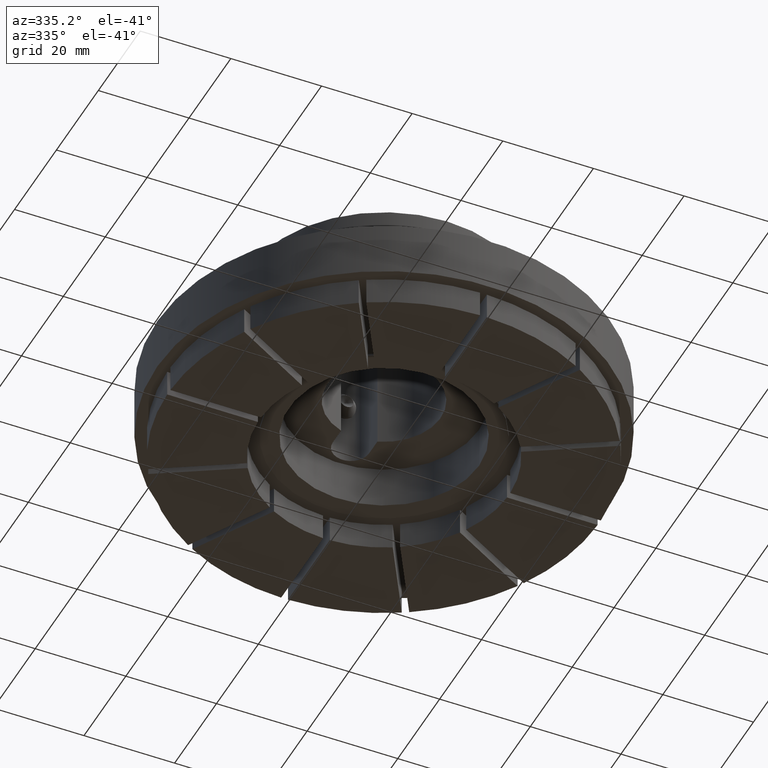
[diagram: clean part render]
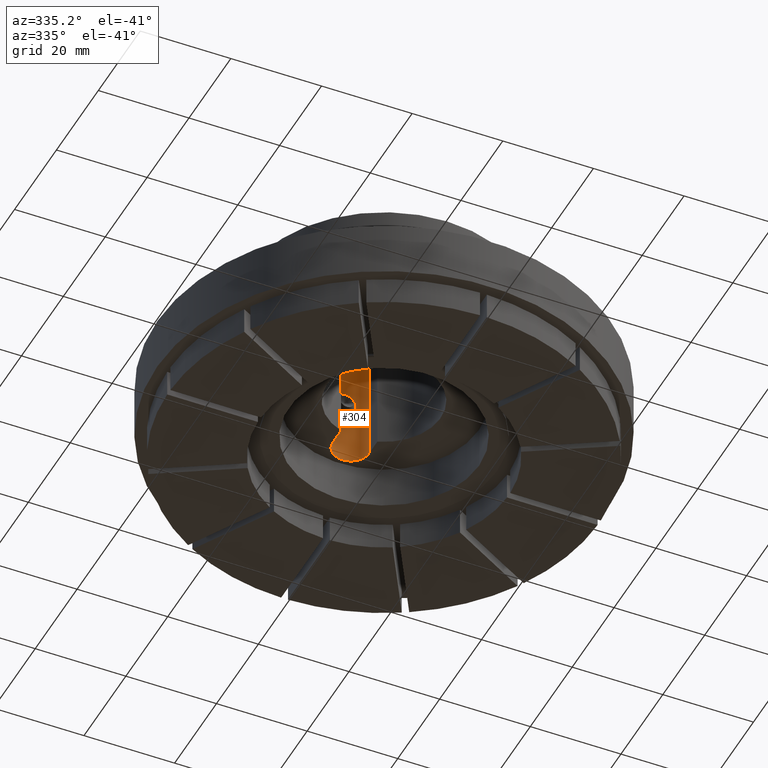
[diagram: same view with one face highlighted and labeled with its STEP entity id]
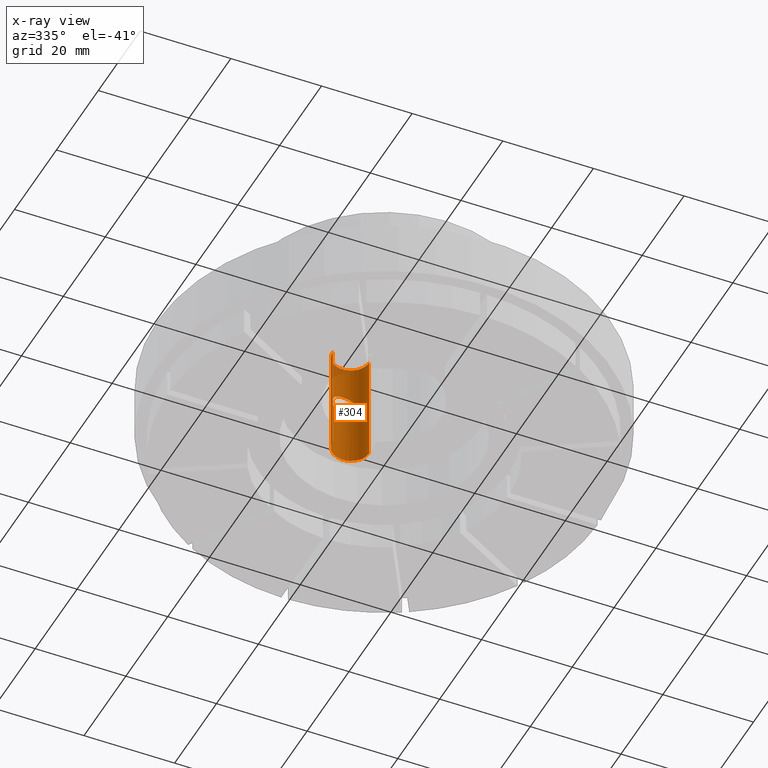
[diagram: x-ray of the same camera — body ghosted, the highlighted face saturated]
A machine part, auxiliary view. The second image highlights one B-rep face of the part: STEP entity #304.
The next image is the same camera in x-ray: the body ghosted, the highlighted face saturated — about 6% of this face is hidden behind the body in this view.
In plain terms, the highlighted cylindrical surface (edge-blend (fillet) strip) has radius 4 mm, axis along (0, -0, 1).
Its self-contained STEP definition (entity closure, byte-faithful):
#304 = ADVANCED_FACE( '', ( #442, #443 ), #444, .F. );
#442 = FACE_BOUND( '', #654, .T. );
#443 = FACE_OUTER_BOUND( '', #655, .T. );
#444 = CYLINDRICAL_SURFACE( '', #656, 4.00000000000000 );
#654 = EDGE_LOOP( '', ( #895 ) );
#655 = EDGE_LOOP( '', ( #896, #897, #898, #899 ) );
#656 = AXIS2_PLACEMENT_3D( '', #900, #901, #902 );
#895 = ORIENTED_EDGE( '', *, *, #1527, .F. );
#896 = ORIENTED_EDGE( '', *, *, #1519, .F. );
#897 = ORIENTED_EDGE( '', *, *, #1523, .F. );
#898 = ORIENTED_EDGE( '', *, *, #1529, .T. );
#899 = ORIENTED_EDGE( '', *, *, #1530, .T. );
#900 = CARTESIAN_POINT( '', ( 8.67361737988404E-016, 15.8000000000000, 39.0000100000000 ) );
#901 = DIRECTION( '', ( 0.000000000000000, -0.000000000000000, 1.00000000000000 ) );
#902 = DIRECTION( '', ( -1.00000000000000, 0.000000000000000, 0.000000000000000 ) );
#1519 = EDGE_CURVE( '', #1733, #1735, #1736, .T. );
#1523 = EDGE_CURVE( '', #1740, #1733, #1742, .T. );
#1527 = EDGE_CURVE( '', #1749, #1749, #1750, .T. );
#1529 = EDGE_CURVE( '', #1740, #1753, #1754, .F. );
#1530 = EDGE_CURVE( '', #1753, #1735, #1755, .T. );
#1733 = VERTEX_POINT( '', #2090 );
#1735 = VERTEX_POINT( '', #2093 );
#1736 = CIRCLE( '', #2094, 4.00000000000000 );
#1740 = VERTEX_POINT( '', #2099 );
#1742 = LINE( '', #2102, #2103 );
#1749 = VERTEX_POINT( '', #2171 );
#1750 = B_SPLINE_CURVE_WITH_KNOTS( '', 3, ( #2172, #2173, #2174, #2175, #2176, #2177, #2178, #2179, #2180, #2181, #2182, #2183, #2184, #2185, #2186, #2187, #2188, #2189, #2190, #2191, #2192, #2193, #2194, #2195, #2196, #2197, #2198, #2199, #2200, #2201, #2202, #2203, #2204, #2205, #2206, #2207, #2208, #2209, #2210, #2211, #2212, #2213, #2214, #2215, #2216, #2217, #2218, #2219, #2220, #2221, #2222, #2223, #2224, #2225, #2226, #2227, #2228, #2229, #2230, #2231, #2232, #2233 ), .UNSPECIFIED., .T., .F., ( 2, 2, 2, 2, 2, 2, 2, 2, 2, 2, 2, 2, 2, 2, 2, 2, 2, 2, 2, 2, 2, 2, 2, 2, 2, 2, 2, 2, 2, 2, 2, 2, 2 ), ( -0.000501660172990847, 0.000000000000000, 0.000501660172990851, 0.00100332034598170, 0.00200664069196341, 0.00250830086495426, 0.00300996103794511, 0.00351162121093596, 0.00401328138392682, 0.00451494155691767, 0.00501660172990852, 0.00601992207589023, 0.00652158224888108, 0.00702324242187193, 0.00752490259486278, 0.00802656276785363, 0.00852822294084448, 0.00902988311383533, 0.00953154328682618, 0.0100332034598170, 0.0105348636328079, 0.0110365238057987, 0.0115381839787896, 0.0120398441517804, 0.0125415043247713, 0.0130431644977621, 0.0135448246707530, 0.0140464848437438, 0.0145481450167347, 0.0150498051897255, 0.0155514653627164, 0.0160531255357072, 0.0165547857086981 ), .UNSPECIFIED. );
#1753 = VERTEX_POINT( '', #2236 );
#1754 = CIRCLE( '', #2237, 4.00000000000000 );
#1755 = LINE( '', #2238, #2239 );
#2090 = CARTESIAN_POINT( '', ( 4.00000000000000, 15.8000000000000, 15.0000000000000 ) );
#2093 = CARTESIAN_POINT( '', ( -4.00000000000000, 15.8000000000000, 15.0000000000000 ) );
#2094 = AXIS2_PLACEMENT_3D( '', #2714, #2715, #2716 );
#2099 = CARTESIAN_POINT( '', ( 4.00000000000000, 15.8000000000000, 39.0000000000000 ) );
#2102 = CARTESIAN_POINT( '', ( 4.00000000000000, 15.8000000000000, 39.0000100000000 ) );
#2103 = VECTOR( '', #2722, 1000.00000000000 );
#2171 = CARTESIAN_POINT( '', ( -2.50000000000000, 18.9224989991992, 29.0000000000000 ) );
#2172 = CARTESIAN_POINT( '', ( -2.50000000000000, 18.9224989991992, 29.1701694173536 ) );
#2173 = CARTESIAN_POINT( '', ( -2.50000000000000, 18.9224989991992, 28.8298305826464 ) );
#2174 = CARTESIAN_POINT( '', ( -2.48282516037210, 18.9364508718382, 28.6638341510880 ) );
#2175 = CARTESIAN_POINT( '', ( -2.41678389798396, 18.9876167333725, 28.3392550829579 ) );
#2176 = CARTESIAN_POINT( '', ( -2.36709841032978, 19.0253315491089, 28.1795601009365 ) );
#2177 = CARTESIAN_POINT( '', ( -2.17844371761518, 19.1582818393687, 27.7313436171180 ) );
#2178 = CARTESIAN_POINT( '', ( -1.99715549778608, 19.2746910775718, 27.4631704923897 ) );
#2179 = CARTESIAN_POINT( '', ( -1.66209783379365, 19.4404612115255, 27.1258203006787 ) );
#2180 = CARTESIAN_POINT( '', ( -1.53770725189031, 19.4953356560857, 27.0223378777838 ) );
#2181 = CARTESIAN_POINT( '', ( -1.27256485436580, 19.5948159237422, 26.8421608601201 ) );
#2182 = CARTESIAN_POINT( '', ( -1.13170555272787, 19.6396857970803, 26.7648608292580 ) );
#2183 = CARTESIAN_POINT( '', ( -0.831690714548345, 19.7156397987697, 26.6367617288995 ) );
#2184 = CARTESIAN_POINT( '', ( -0.670586854849118, 19.7467943849550, 26.5858974452971 ) );
#2185 = CARTESIAN_POINT( '', ( -0.345383884072125, 19.7884310975159, 26.5184102177953 ) );
#2186 = CARTESIAN_POINT( '', ( -0.179700853490371, 19.7995320431697, 26.5007487350718 ) );
#2187 = CARTESIAN_POINT( '', ( 0.158226685381364, 19.8004391355349, 26.4992973791305 ) );
#2188 = CARTESIAN_POINT( '', ( 0.327355301905881, 19.7899779938282, 26.5159336300899 ) );
#2189 = CARTESIAN_POINT( '', ( 0.654025052819522, 19.7495996145437, 26.5813229950883 ) );
#2190 = CARTESIAN_POINT( '', ( 0.815147761711096, 19.7191693891360, 26.6309290552217 ) );
#2191 = CARTESIAN_POINT( '', ( 1.26945165381213, 19.6060361001027, 26.8213893055675 ) );
#2192 = CARTESIAN_POINT( '', ( 1.54054799563275, 19.4999187600382, 27.0056631300653 ) );
#2193 = CARTESIAN_POINT( '', ( 1.87755974817301, 19.3341818192438, 27.3417068077545 ) );
#2194 = CARTESIAN_POINT( '', ( 1.98012724625705, 19.2770716035955, 27.4655511755294 ) );
#2195 = CARTESIAN_POINT( '', ( 2.15906456847887, 19.1688827579836, 27.7296152962870 ) );
#2196 = CARTESIAN_POINT( '', ( 2.23555952017633, 19.1178741984504, 27.8693460307771 ) );
#2197 = CARTESIAN_POINT( '', ( 2.36249805880404, 19.0287177775614, 28.1665087351882 ) );
#2198 = CARTESIAN_POINT( '', ( 2.41319294924666, 18.9903519603629, 28.3261136958894 ) );
#2199 = CARTESIAN_POINT( '', ( 2.48116226405784, 18.9377826025237, 28.6514934999501 ) );
#2200 = CARTESIAN_POINT( '', ( 2.49924268817942, 18.9231053247659, 28.8193938266906 ) );
#2201 = CARTESIAN_POINT( '', ( 2.50071060290050, 18.9219300704116, 29.1589939772344 ) );
#2202 = CARTESIAN_POINT( '', ( 2.48431939677944, 18.9352616366601, 29.3255880501739 ) );
#2203 = CARTESIAN_POINT( '', ( 2.41900136655918, 18.9859285591664, 29.6529033865859 ) );
#2204 = CARTESIAN_POINT( '', ( 2.36985206822518, 19.0233019128723, 29.8125510322980 ) );
#2205 = CARTESIAN_POINT( '', ( 2.24463727536214, 19.1117182170064, 30.1126731359274 ) );
#2206 = CARTESIAN_POINT( '', ( 2.16733879617559, 19.1635460238753, 30.2562548090081 ) );
#2207 = CARTESIAN_POINT( '', ( 1.98976351852672, 19.2715472706670, 30.5219641069697 ) );
#2208 = CARTESIAN_POINT( '', ( 1.88948757196336, 19.3278280804668, 30.6447992127661 ) );
#2209 = CARTESIAN_POINT( '', ( 1.66473364187875, 19.4392851154493, 30.8719480859568 ) );
#2210 = CARTESIAN_POINT( '', ( 1.54107438555998, 19.4939143033462, 30.9750067689909 ) );
#2211 = CARTESIAN_POINT( '', ( 1.27693578160235, 19.5933294283464, 31.1552255123426 ) );
#2212 = CARTESIAN_POINT( '', ( 1.13557242942148, 19.6386345256856, 31.2333525752097 ) );
#2213 = CARTESIAN_POINT( '', ( 0.831267173743378, 19.7158185159816, 31.3635531205190 ) );
#2214 = CARTESIAN_POINT( '', ( 0.673115791009341, 19.7463514089996, 31.4133794390348 ) );
#2215 = CARTESIAN_POINT( '', ( 0.348538226877533, 19.7881443574455, 31.4811300427964 ) );
#2216 = CARTESIAN_POINT( '', ( 0.179270261475024, 19.7995661236367, 31.4993057945111 ) );
#2217 = CARTESIAN_POINT( '', ( -0.159355350930900, 19.8004090885960, 31.5006545449654 ) );
#2218 = CARTESIAN_POINT( '', ( -0.326180205807023, 19.7901199529966, 31.4842961307078 ) );
#2219 = CARTESIAN_POINT( '', ( -0.655043723577813, 19.7494769889396, 31.4184785531220 ) );
#2220 = CARTESIAN_POINT( '', ( -0.816195085076003, 19.7189481494777, 31.3687056345065 ) );
#2221 = CARTESIAN_POINT( '', ( -1.11888675574955, 19.6434907887239, 31.2416585885574 ) );
#2222 = CARTESIAN_POINT( '', ( -1.26378195875777, 19.5978011335104, 31.1630896562795 ) );
#2223 = CARTESIAN_POINT( '', ( -1.53168270733605, 19.4978894484587, 30.9824353165823 ) );
#2224 = CARTESIAN_POINT( '', ( -1.65465458639192, 19.4438948569736, 30.8808576642294 ) );
#2225 = CARTESIAN_POINT( '', ( -1.88054057912449, 19.3326220657201, 30.6550149496680 ) );
#2226 = CARTESIAN_POINT( '', ( -1.98287932892973, 19.2754878942077, 30.5308446797096 ) );
#2227 = CARTESIAN_POINT( '', ( -2.16088878453876, 19.1676974621744, 30.2672235506597 ) );
#2228 = CARTESIAN_POINT( '', ( -2.23767430569378, 19.1164631480734, 30.1267870011240 ) );
#2229 = CARTESIAN_POINT( '', ( -2.36557699353876, 19.0264778936994, 29.8251549744771 ) );
#2230 = CARTESIAN_POINT( '', ( -2.41505871352309, 18.9889330046158, 29.6672305053144 ) );
#2231 = CARTESIAN_POINT( '', ( -2.48219771554920, 18.9369566140790, 29.3411739115293 ) );
#2232 = CARTESIAN_POINT( '', ( -2.50000000000000, 18.9224989991992, 29.1701694173536 ) );
#2233 = CARTESIAN_POINT( '', ( -2.50000000000000, 18.9224989991992, 28.8298305826464 ) );
#2236 = CARTESIAN_POINT( '', ( -4.00000000000000, 15.8000000000000, 39.0000000000000 ) );
#2237 = AXIS2_PLACEMENT_3D( '', #2732, #2733, #2734 );
#2238 = CARTESIAN_POINT( '', ( -4.00000000000000, 15.8000000000000, 39.0000100000000 ) );
#2239 = VECTOR( '', #2735, 1000.00000000000 );
#2714 = CARTESIAN_POINT( '', ( 8.67361737988404E-016, 15.8000000000000, 15.0000000000000 ) );
#2715 = DIRECTION( '', ( 0.000000000000000, 0.000000000000000, 1.00000000000000 ) );
#2716 = DIRECTION( '', ( 1.00000000000000, 0.000000000000000, -0.000000000000000 ) );
#2722 = DIRECTION( '', ( -0.000000000000000, -0.000000000000000, -1.00000000000000 ) );
#2732 = CARTESIAN_POINT( '', ( 8.67361737988404E-016, 15.8000000000000, 39.0000000000000 ) );
#2733 = DIRECTION( '', ( -0.000000000000000, 0.000000000000000, -1.00000000000000 ) );
#2734 = DIRECTION( '', ( -1.00000000000000, 0.000000000000000, 0.000000000000000 ) );
#2735 = DIRECTION( '', ( -0.000000000000000, -0.000000000000000, -1.00000000000000 ) );